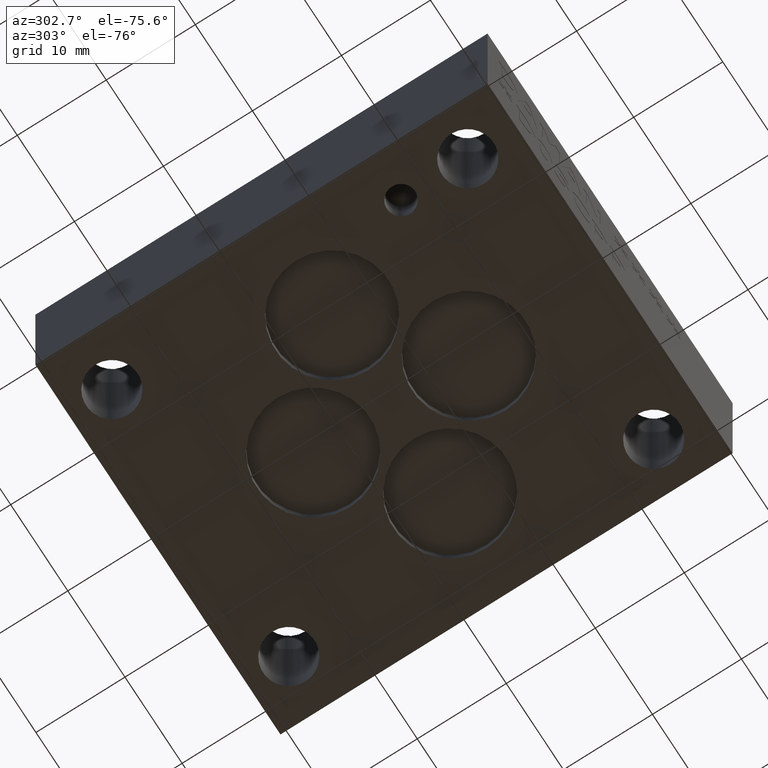
[diagram: clean part render]
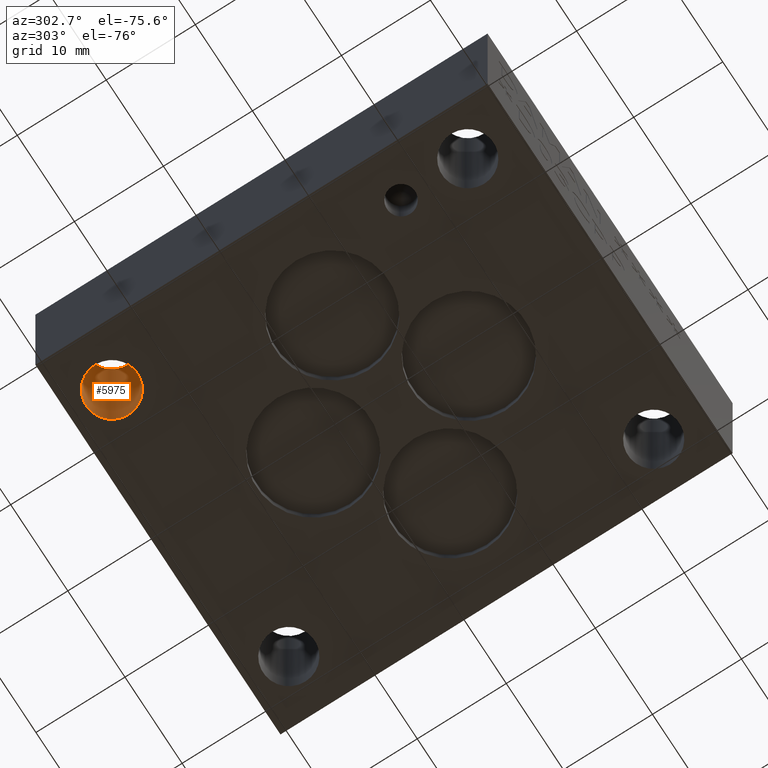
[diagram: same view with one face highlighted and labeled with its STEP entity id]
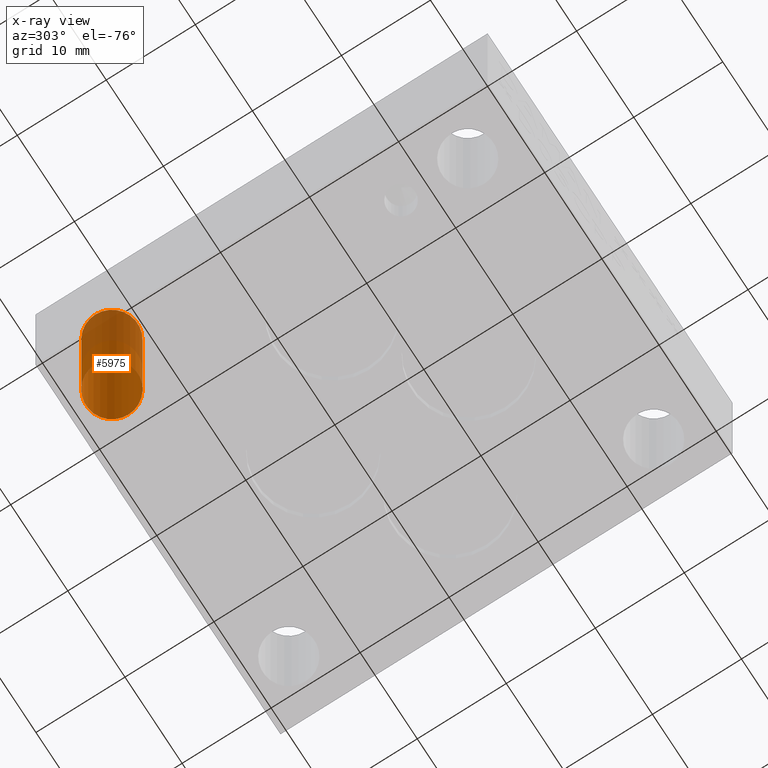
[diagram: x-ray of the same camera — body ghosted, the highlighted face saturated]
A machine part, auxiliary view. The second image highlights one B-rep face of the part: STEP entity #5975.
The next image is the same camera in x-ray: the body ghosted, the highlighted face saturated — about 33% of this face is hidden behind the body in this view.
In plain terms, the highlighted cylindrical surface (bore or boss wall) has radius 2.8956 mm, axis along (0, 0, -1).
Its self-contained STEP definition (entity closure, byte-faithful):
#38=CIRCLE('',#6231,2.8956);
#39=CIRCLE('',#6232,2.8956);
#40=CIRCLE('',#6233,2.8956);
#53=CYLINDRICAL_SURFACE('',#6230,2.8956);
#588=FACE_OUTER_BOUND('',#908,.T.);
#908=EDGE_LOOP('',(#5277,#5278,#5279,#5280,#5281));
#1545=LINE('',#10030,#2171);
#2171=VECTOR('',#7335,2.8956);
#2876=VERTEX_POINT('',#10025);
#2877=VERTEX_POINT('',#10026);
#2878=VERTEX_POINT('',#10029);
#3685=EDGE_CURVE('',#2876,#2877,#38,.T.);
#3686=EDGE_CURVE('',#2877,#2876,#39,.T.);
#3687=EDGE_CURVE('',#2877,#2878,#1545,.T.);
#3688=EDGE_CURVE('',#2878,#2878,#40,.T.);
#5277=ORIENTED_EDGE('',*,*,#3685,.F.);
#5278=ORIENTED_EDGE('',*,*,#3686,.F.);
#5279=ORIENTED_EDGE('',*,*,#3687,.T.);
#5280=ORIENTED_EDGE('',*,*,#3688,.F.);
#5281=ORIENTED_EDGE('',*,*,#3687,.F.);
#5975=ADVANCED_FACE('',(#588),#53,.F.);
#6230=AXIS2_PLACEMENT_3D('',#10024,#7329,#7330);
#6231=AXIS2_PLACEMENT_3D('',#10027,#7331,#7332);
#6232=AXIS2_PLACEMENT_3D('',#10028,#7333,#7334);
#6233=AXIS2_PLACEMENT_3D('',#10031,#7336,#7337);
#7329=DIRECTION('center_axis',(0.,0.,-1.));
#7330=DIRECTION('ref_axis',(1.,0.,0.));
#7331=DIRECTION('center_axis',(0.,0.,1.));
#7332=DIRECTION('ref_axis',(1.,0.,0.));
#7333=DIRECTION('center_axis',(0.,0.,1.));
#7334=DIRECTION('ref_axis',(1.,0.,0.));
#7335=DIRECTION('',(0.,0.,1.));
#7336=DIRECTION('center_axis',(0.,0.,-1.));
#7337=DIRECTION('ref_axis',(1.,0.,0.));
#10024=CARTESIAN_POINT('Origin',(5.9436,46.0248,69.1507431271711));
#10025=CARTESIAN_POINT('',(8.8392,46.0248,0.));
#10026=CARTESIAN_POINT('',(3.048,46.0248,-8.88178419700125E-15));
#10027=CARTESIAN_POINT('Origin',(5.9436,46.0248,0.));
#10028=CARTESIAN_POINT('Origin',(5.9436,46.0248,0.));
#10029=CARTESIAN_POINT('',(3.048,46.0248,19.05));
#10030=CARTESIAN_POINT('',(3.048,46.0248,69.1507431271711));
#10031=CARTESIAN_POINT('Origin',(5.9436,46.0248,19.05));